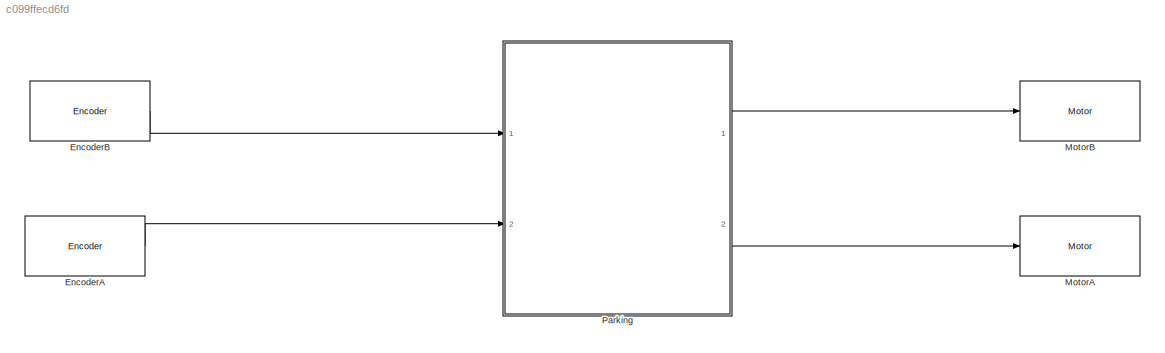
MODEL slx_c099ffecd6fd
KIND model
CONFIG AbsTol = auto
CONFIG FixedStep = auto
CONFIG MaxStep = auto
CONFIG MinStep = auto
CONFIG RelTol = 1e-3
CONFIG SampleTimeConstraint = Unconstrained
CONFIG Solver = ode3
CONFIG SolverMode = Auto
CONFIG SolverName = ode3
CONFIG StartTime = 0.0
CONFIG StopTime = inf
BLOCK [Reference] EncoderA  REF=legoev3lib/Encoder
  Ports = [0, 1]
  SourceBlock = legoev3lib/Encoder
  SourceType = LEGO MINDSTORMS EV3 Encoder
  opMode = No reset
  portNumber = A
  sampleTime = 0.1
BLOCK [Reference] EncoderB  REF=legoev3lib/Encoder
  Ports = [0, 1]
  SourceBlock = legoev3lib/Encoder
  SourceType = LEGO MINDSTORMS EV3 Encoder
  opMode = No reset
  portNumber = B
  sampleTime = 0.1
BLOCK [Reference] MotorA  REF=legoev3lib/Motor
  Ports = [1]
  SourceBlock = legoev3lib/Motor
  SourceType = LEGO MINDSTORMS EV3 Motor
  sportNumber = A
  sstopAction = Brake
BLOCK [Reference] MotorB  REF=legoev3lib/Motor
  Ports = [1]
  SourceBlock = legoev3lib/Motor
  SourceType = LEGO MINDSTORMS EV3 Motor
  sportNumber = B
  sstopAction = Brake
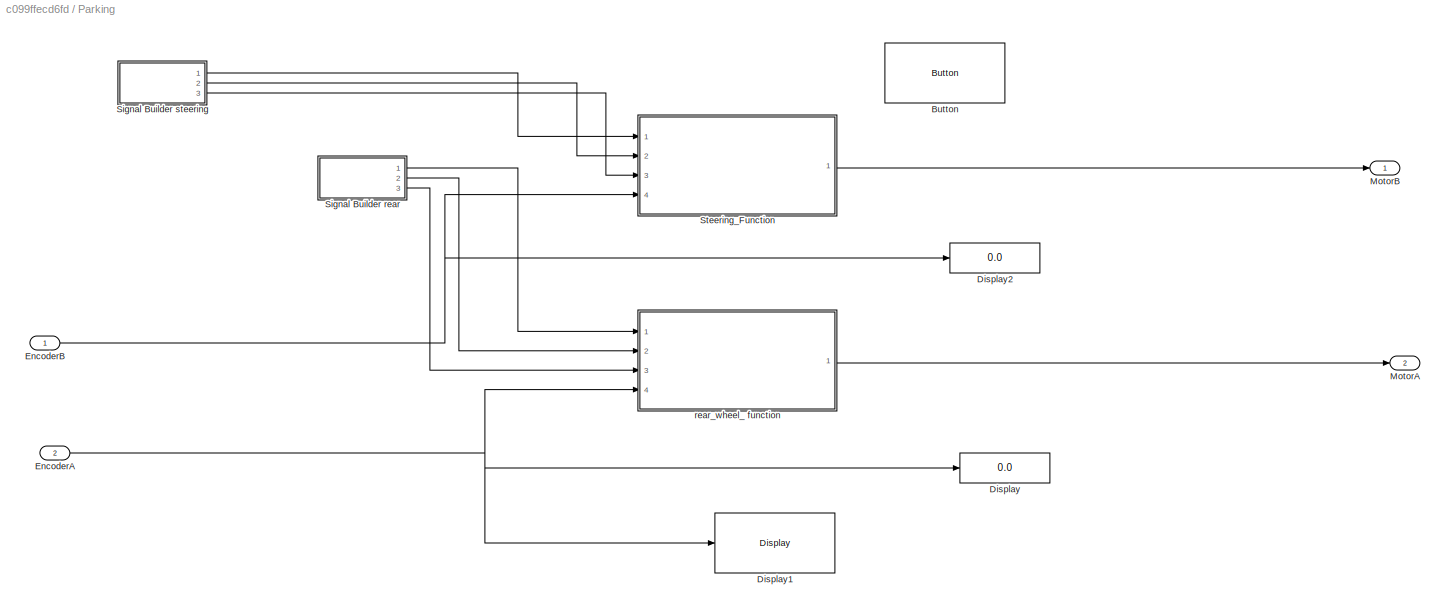
BLOCK [SubSystem] Parking
  Ports = [2, 2]
  RequestExecContextInheritance = off
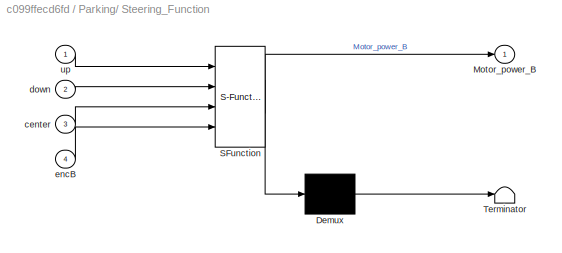
BLOCK [SubSystem] Parking/ Steering_Function
  ErrorFcn = Stateflow.Translate.translate
  PermitHierarchicalResolution = ExplicitOnly
  Ports = [4, 1]
  RequestExecContextInheritance = off
  SFBlockType = MATLAB Function
  TreatAsAtomicUnit = on
BLOCK [Demux] Parking/ Steering_Function/ Demux 
  Outputs = 1
  Ports = [1, 1]
BLOCK [S-Function] Parking/ Steering_Function/ SFunction 
  EnableBusSupport = on
  FunctionName = sf_sfun
  PortCounts = [4 2]
  Ports = [4, 2]
  Tag = Stateflow S-Function testbench_rearwheel_parking 1
BLOCK [Terminator] Parking/ Steering_Function/ Terminator 
BLOCK [Outport] Parking/ Steering_Function/Motor_power_B
  IconDisplay = Port number
BLOCK [Inport] Parking/ Steering_Function/center
  IconDisplay = Port number
  Port = 3
BLOCK [Inport] Parking/ Steering_Function/down
  IconDisplay = Port number
  Port = 2
BLOCK [Inport] Parking/ Steering_Function/encB
  IconDisplay = Port number
  Port = 4
BLOCK [Inport] Parking/ Steering_Function/up
  IconDisplay = Port number
BLOCK [Reference] Parking/Button  REF=legoev3lib/Button
  Ports = [0, 1]
  SourceBlock = legoev3lib/Button
  SourceType = LEGO MINDSTORMS EV3 Button
  buttonType = Up
  sampleTime = 0.1
BLOCK [Display] Parking/Display
  Decimation = 1
  Format = decimal (Stored Integer)
  Ports = [1]
BLOCK [Reference] Parking/Display1  REF=legoev3lib/Display
  Ports = [1]
  SourceBlock = legoev3lib/Display
  SourceType = LEGO MINDSTORMS EV3 Display
  slcdFormat = Decimal
  slcdLine = 1
  slcdStr = enc A
BLOCK [Display] Parking/Display2
  Decimation = 1
  Format = decimal (Stored Integer)
  Ports = [1]
BLOCK [Inport] Parking/EncoderA
  IconDisplay = Port number
  Port = 2
BLOCK [Inport] Parking/EncoderB
  IconDisplay = Port number
BLOCK [Outport] Parking/MotorA
  IconDisplay = Port number
  Port = 2
BLOCK [Outport] Parking/MotorB
  IconDisplay = Port number
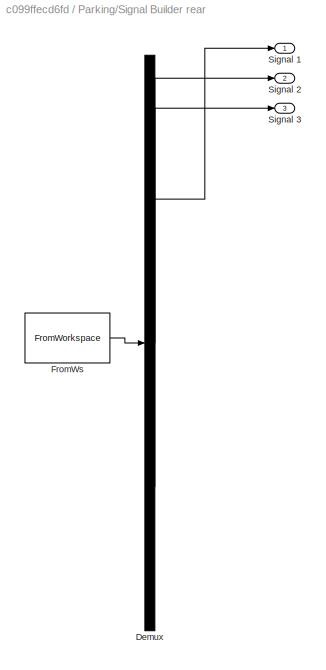
BLOCK [SubSystem] Parking/Signal Builder rear
  ClipboardFcn = sigbuilder_block('clipboard');
  CloseFcn = sigbuilder_block('close');
  ContinueFcn = sigbuilder_block('continue');
  CopyFcn = sigbuilder_block('copy');
  DeleteFcn = sigbuilder_block('delete');
  LoadFcn = sigbuilder_block('load');
  MaskHideContents = on
  ModelCloseFcn = sigbuilder_block('modelClose');
  NameChangeFcn = sigbuilder_block('namechange');
  OpenFcn = sigbuilder_block('open',[438 199 636 400 ]);
  PauseFcn = sigbuilder_block('pause');
  Ports = [0, 3]
  PreSaveFcn = sigbuilder_block('preSave');
  RequestExecContextInheritance = off
  StartFcn = sigbuilder_block('start');
  StopFcn = sigbuilder_block('stop');
  Tag = STV Subsys
BLOCK [Demux] Parking/Signal Builder rear/Demux
  Outputs = 3
  Ports = [1, 3]
  Tag = STV Demux
BLOCK [FromWorkspace] Parking/Signal Builder rear/FromWs
  SampleTime = 0
  Tag = STV FromWs
  VariableName = tuvar
  ZeroCross = on
BLOCK [Outport] Parking/Signal Builder rear/Signal 1
  IconDisplay = Port number
  Tag = STV Outport
BLOCK [Outport] Parking/Signal Builder rear/Signal 2
  IconDisplay = Port number
  Port = 2
  Tag = STV Outport
BLOCK [Outport] Parking/Signal Builder rear/Signal 3
  IconDisplay = Port number
  Port = 3
  Tag = STV Outport
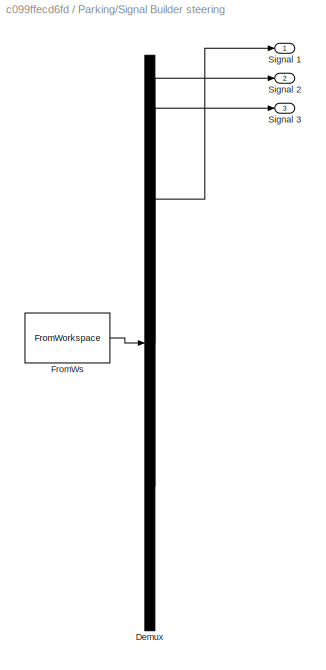
BLOCK [SubSystem] Parking/Signal Builder steering
  ClipboardFcn = sigbuilder_block('clipboard');
  CloseFcn = sigbuilder_block('close');
  ContinueFcn = sigbuilder_block('continue');
  CopyFcn = sigbuilder_block('copy');
  DeleteFcn = sigbuilder_block('delete');
  LoadFcn = sigbuilder_block('load');
  MaskHideContents = on
  ModelCloseFcn = sigbuilder_block('modelClose');
  NameChangeFcn = sigbuilder_block('namechange');
  OpenFcn = sigbuilder_block('open',[438 199 636 400 ]);
  PauseFcn = sigbuilder_block('pause');
  Ports = [0, 3]
  PreSaveFcn = sigbuilder_block('preSave');
  RequestExecContextInheritance = off
  StartFcn = sigbuilder_block('start');
  StopFcn = sigbuilder_block('stop');
  Tag = STV Subsys
BLOCK [Demux] Parking/Signal Builder steering/Demux
  Outputs = 3
  Ports = [1, 3]
  Tag = STV Demux
BLOCK [FromWorkspace] Parking/Signal Builder steering/FromWs
  SampleTime = 0
  Tag = STV FromWs
  VariableName = tuvar
  ZeroCross = on
BLOCK [Outport] Parking/Signal Builder steering/Signal 1
  IconDisplay = Port number
  Tag = STV Outport
BLOCK [Outport] Parking/Signal Builder steering/Signal 2
  IconDisplay = Port number
  Port = 2
  Tag = STV Outport
BLOCK [Outport] Parking/Signal Builder steering/Signal 3
  IconDisplay = Port number
  Port = 3
  Tag = STV Outport
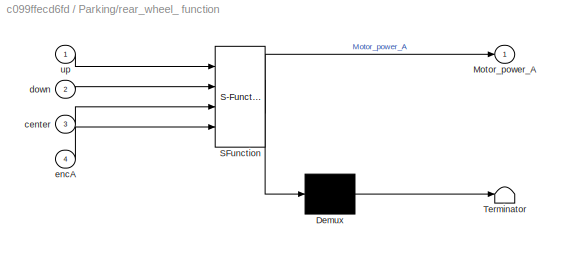
BLOCK [SubSystem] Parking/rear_wheel_ function
  ErrorFcn = Stateflow.Translate.translate
  PermitHierarchicalResolution = ExplicitOnly
  Ports = [4, 1]
  RequestExecContextInheritance = off
  SFBlockType = MATLAB Function
  TreatAsAtomicUnit = on
BLOCK [Demux] Parking/rear_wheel_ function/ Demux 
  Outputs = 1
  Ports = [1, 1]
BLOCK [S-Function] Parking/rear_wheel_ function/ SFunction 
  EnableBusSupport = on
  FunctionName = sf_sfun
  PortCounts = [4 2]
  Ports = [4, 2]
  Tag = Stateflow S-Function testbench_rearwheel_parking 2
BLOCK [Terminator] Parking/rear_wheel_ function/ Terminator 
BLOCK [Outport] Parking/rear_wheel_ function/Motor_power_A
  IconDisplay = Port number
BLOCK [Inport] Parking/rear_wheel_ function/center
  IconDisplay = Port number
  Port = 3
BLOCK [Inport] Parking/rear_wheel_ function/down
  IconDisplay = Port number
  Port = 2
BLOCK [Inport] Parking/rear_wheel_ function/encA
  IconDisplay = Port number
  Port = 4
BLOCK [Inport] Parking/rear_wheel_ function/up
  IconDisplay = Port number
LINE EncoderA:1 -> Parking:2
LINE EncoderB:1 -> Parking:1
LINE Parking/ Steering_Function:1 -> Parking/MotorB:1
NET Parking/EncoderA:1 -> Parking/Display1:1, Parking/Display:1, Parking/rear_wheel_ function:4
NET Parking/EncoderB:1 -> Parking/ Steering_Function:4, Parking/Display2:1
LINE Parking/Signal Builder rear:1 -> Parking/rear_wheel_ function:1
LINE Parking/Signal Builder rear:2 -> Parking/rear_wheel_ function:2
LINE Parking/Signal Builder rear:3 -> Parking/rear_wheel_ function:3
LINE Parking/Signal Builder steering:1 -> Parking/ Steering_Function:1
LINE Parking/Signal Builder steering:2 -> Parking/ Steering_Function:2
LINE Parking/Signal Builder steering:3 -> Parking/ Steering_Function:3
LINE Parking/rear_wheel_ function:1 -> Parking/MotorA:1
LINE Parking:1 -> MotorB:1
LINE Parking:2 -> MotorA:1
note: NET lines group one-source signal fan-out (src -> all destinations, sorted); 1:1 wires keep LINE
CHART Parking/ Steering_Function states=1 transitions=1
  STATE_LABEL 'eML_blk_kernel()'
  STATE_LABEL 'SCRIPT:\nfunction Motor_power_B=fcn(up,down,center,encB)\n%#codegen\nif(up==1)&&(encB>=-400)\n   Motor_power_B=-70;\nelseif(down==1)&&(encB<=400)\n   Motor_power_B=70;\nelseif (center==1)&&(encB>=5)\n %%  while(encB~=0)\n   Motor_power_B=-70;\nelse\n   Motor_power_B=0;\nend\nend\n\n \n    '
CHART Parking/rear_wheel_ function states=1 transitions=1
  STATE_LABEL 'eML_blk_kernel()'
  STATE_LABEL 'SCRIPT:\nfunction Motor_power_A=fcn(up, down,center,encA)\n%#codegen\nif (up==1)&&(encA>=-240)\n  Motor_power_A = -30;\nelseif (down==1)&&(encA>=-500)\n     Motor_power_A = -30;\nelseif (center==1)&&(encA<=-445)\n    Motor_power_A=30;\nelse\n    Motor_power_A=0; \nend\nend\n\n \n    '
